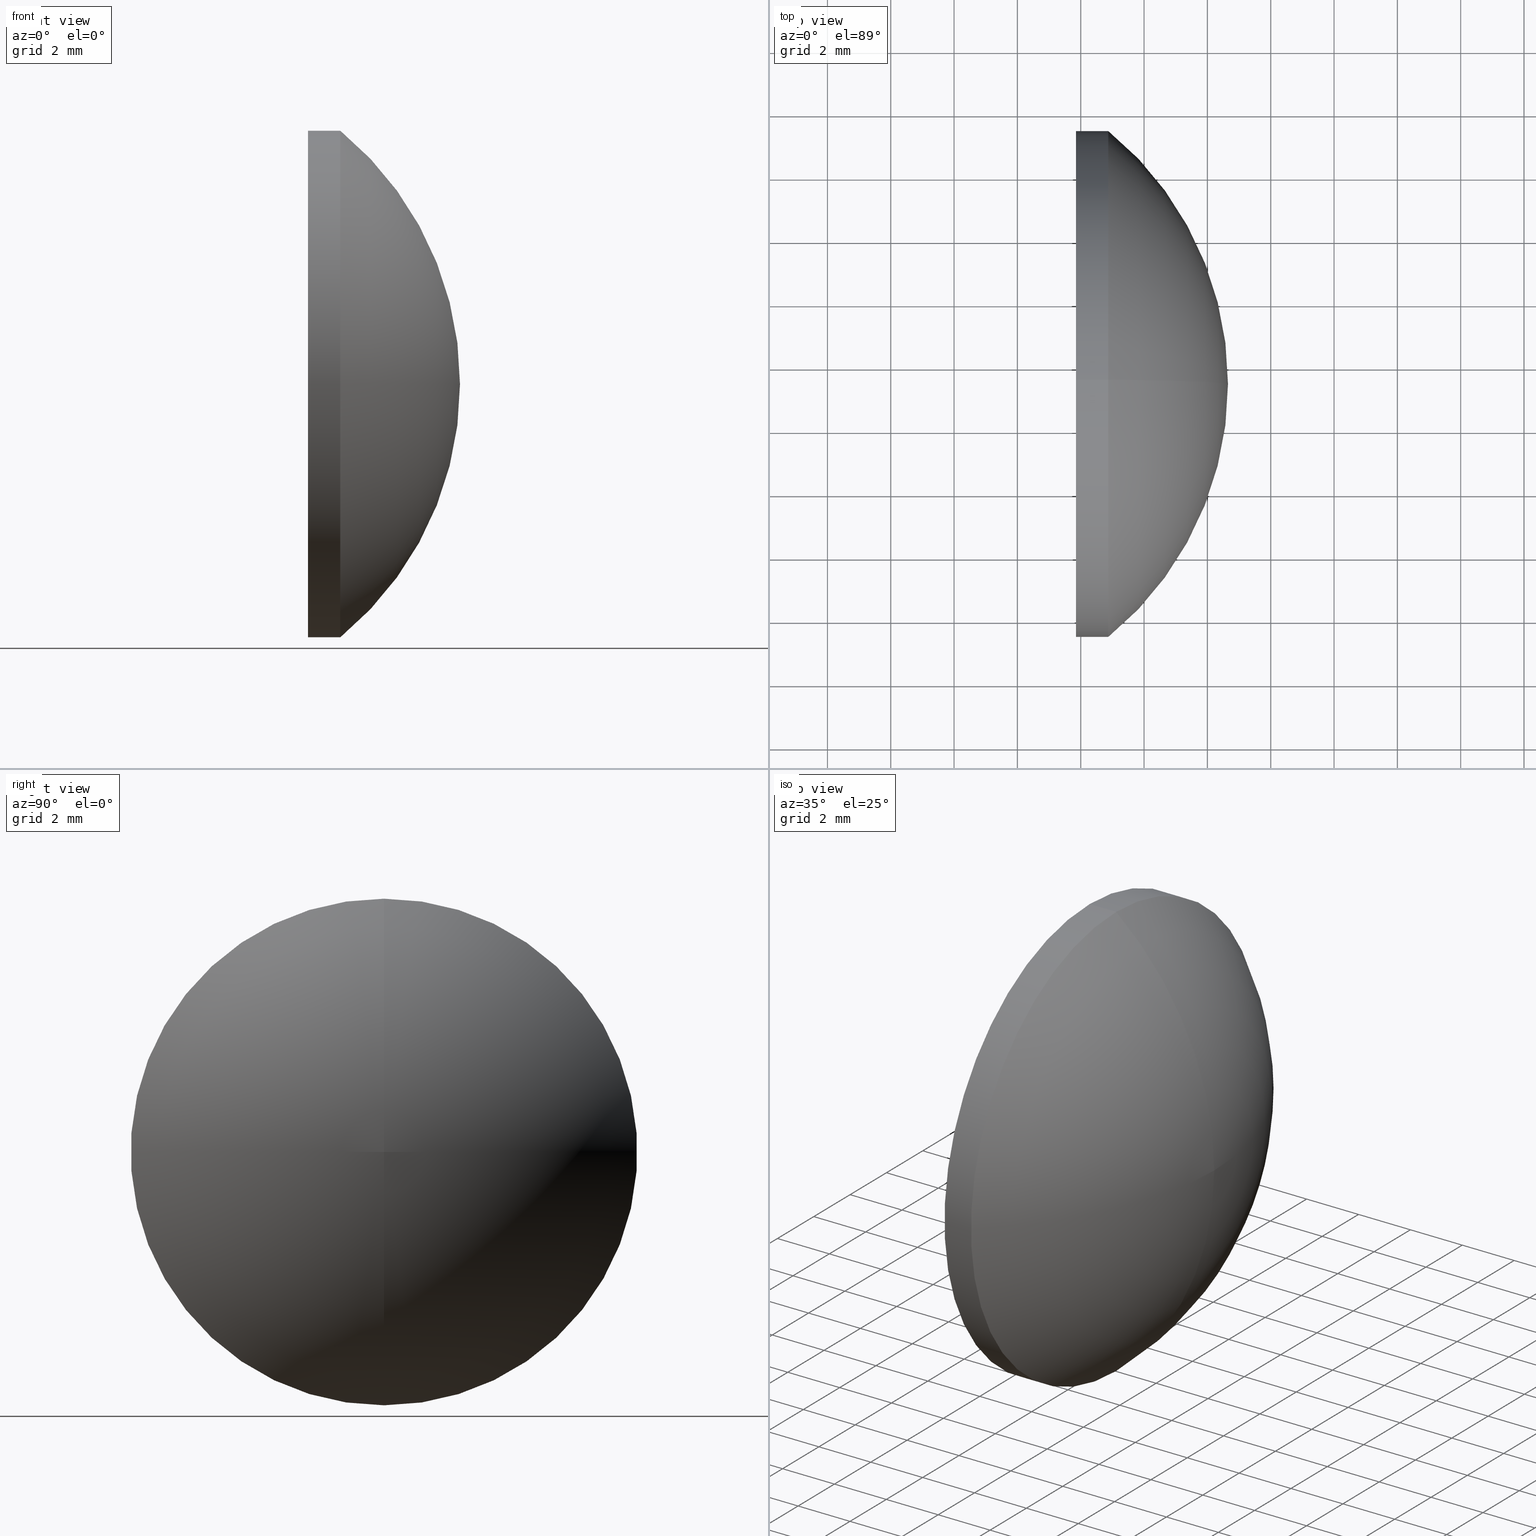
[diagram: canonical four-view strip — front | top / right | iso, engineering-drawing reading convention]
A machine part, canonical four-view strip (front | top / right | iso — engineering-drawing reading convention). The complete STEP part file that produces these views, byte-faithful:
ISO-10303-21;
HEADER;
FILE_DESCRIPTION (( 'STEP AP214' ),
    '1' );
FILE_NAME ('100283.STEP',
    '2019-05-29T08:31:47',
    ( '' ),
    ( '' ),
    'SwSTEP 2.0',
    'SolidWorks 2016',
    '' );
FILE_SCHEMA (( 'AUTOMOTIVE_DESIGN' ));
ENDSEC;

DATA;
#1 = ADVANCED_FACE ( 'NONE', ( #79 ), #45, .T. ) ;
#2 = AXIS2_PLACEMENT_3D ( 'NONE', #141, #143, #157 ) ;
#3 = ADVANCED_FACE ( 'NONE', ( #5 ), #85, .F. ) ;
#4 = DIRECTION ( 'NONE',  ( -0.0000000000000000000, 1.000000000000000000, 1.224646799147353200E-016 ) ) ;
#5 = FACE_OUTER_BOUND ( 'NONE', #80, .T. ) ;
#6 = CARTESIAN_POINT ( 'NONE',  ( 444.3056959863679900, 135.4163009679578000, 0.005081351781899279300 ) ) ;
#7 = ORIENTED_EDGE ( 'NONE', *, *, #87, .T. ) ;
#8 = FILL_AREA_STYLE_COLOUR ( '', #101 ) ;
#9 = CARTESIAN_POINT ( 'NONE',  ( 449.8505502683110500, 135.4163009679578000, 0.0000000000000000000 ) ) ;
#10 = VERTEX_POINT ( 'NONE', #75 ) ;
#11 = AXIS2_PLACEMENT_3D ( 'NONE', #70, #33, #102 ) ;
#12 = PRODUCT ( '100283', '100283', '', ( #61 ) ) ;
#13 = ORIENTED_EDGE ( 'NONE', *, *, #51, .T. ) ;
#14 = APPLICATION_PROTOCOL_DEFINITION ( 'draft international standard', 'automotive_design', 1998, #46 ) ;
#15 = ADVANCED_FACE ( 'NONE', ( #134 ), #22, .T. ) ;
#16 = DIRECTION ( 'NONE',  ( 0.0000000000000000000, 0.0000000000000000000, 1.000000000000000000 ) ) ;
#17 = AXIS2_PLACEMENT_3D ( 'NONE', #91, #83, #30 ) ;
#18 = CARTESIAN_POINT ( 'NONE',  ( 447.9277335634653200, 135.4163009679578000, 8.000000000000007100 ) ) ;
#19 =( NAMED_UNIT ( * ) PLANE_ANGLE_UNIT ( ) SI_UNIT ( $, .RADIAN. ) );
#20 = DIRECTION ( 'NONE',  ( -1.000000000000000000, -0.0000000000000000000, -0.0000000000000000000 ) ) ;
#21 = CARTESIAN_POINT ( 'NONE',  ( 444.3056959863679900, 135.4163009679578000, 0.0000000000000000000 ) ) ;
#22 = TOROIDAL_SURFACE ( 'NONE', #117, 0.005081351781899279300, 10.34485552991298700 ) ;
#23 = COLOUR_RGB ( '',1.000000000000000000, 1.000000000000000000, 1.000000000000000000 ) ;
#24 = AXIS2_PLACEMENT_3D ( 'NONE', #149, #4, #34 ) ;
#25 = UNCERTAINTY_MEASURE_WITH_UNIT (LENGTH_MEASURE( 1.000000000000000100E-005 ), #146, 'distance_accuracy_value', 'NONE');
#26 = ORIENTED_EDGE ( 'NONE', *, *, #159, .T. ) ;
#27 = PRODUCT_DEFINITION ( 'δ֪', '', #155, #112 ) ;
#28 = VECTOR ( 'NONE', #106, 1000.000000000000000 ) ;
#29 = ORIENTED_EDGE ( 'NONE', *, *, #56, .T. ) ;
#30 = DIRECTION ( 'NONE',  ( 1.000000000000000000, 0.0000000000000000000, 0.0000000000000000000 ) ) ;
#31 =( NAMED_UNIT ( * ) SI_UNIT ( $, .STERADIAN. ) SOLID_ANGLE_UNIT ( ) );
#32 =( GEOMETRIC_REPRESENTATION_CONTEXT ( 3 ) GLOBAL_UNCERTAINTY_ASSIGNED_CONTEXT ( ( #162 ) ) GLOBAL_UNIT_ASSIGNED_CONTEXT ( ( #148, #77, #130 ) ) REPRESENTATION_CONTEXT ( 'NONE', 'WORKASPACE' ) );
#33 = DIRECTION ( 'NONE',  ( -1.000000000000000000, -0.0000000000000000000, -0.0000000000000000000 ) ) ;
#34 = DIRECTION ( 'NONE',  ( 0.0000000000000000000, 0.0000000000000000000, 1.000000000000000000 ) ) ;
#35 = PRODUCT_RELATED_PRODUCT_CATEGORY ( 'part', '', ( #12 ) ) ;
#36 = FACE_OUTER_BOUND ( 'NONE', #88, .T. ) ;
#37 = FACE_OUTER_BOUND ( 'NONE', #131, .T. ) ;
#38 = DIRECTION ( 'NONE',  ( 0.0000000000000000000, 0.0000000000000000000, 1.000000000000000000 ) ) ;
#39 = SURFACE_SIDE_STYLE ('',( #140 ) ) ;
#40 = ORIENTED_EDGE ( 'NONE', *, *, #51, .F. ) ;
#41 = CARTESIAN_POINT ( 'NONE',  ( 444.3056959863679900, 135.4163009679578000, 0.0000000000000000000 ) ) ;
#42 =( GEOMETRIC_REPRESENTATION_CONTEXT ( 3 ) GLOBAL_UNCERTAINTY_ASSIGNED_CONTEXT ( ( #25 ) ) GLOBAL_UNIT_ASSIGNED_CONTEXT ( ( #146, #158, #31 ) ) REPRESENTATION_CONTEXT ( 'NONE', 'WORKASPACE' ) );
#43 = PRODUCT_DEFINITION_SHAPE ( 'NONE', 'NONE',  #27 ) ;
#44 = EDGE_CURVE ( 'NONE', #10, #127, #72, .T. ) ;
#45 = CYLINDRICAL_SURFACE ( 'NONE', #153, 8.000000000000007100 ) ;
#46 = APPLICATION_CONTEXT ( 'automotive_design' ) ;
#47 = DIRECTION ( 'NONE',  ( -1.000000000000000000, -0.0000000000000000000, -0.0000000000000000000 ) ) ;
#48 = ADVANCED_FACE ( 'NONE', ( #36 ), #138, .T. ) ;
#49 = TOROIDAL_SURFACE ( 'NONE', #50, 0.005081351781899279300, 10.34485552991298700 ) ;
#50 = AXIS2_PLACEMENT_3D ( 'NONE', #21, #53, #111 ) ;
#51 = EDGE_CURVE ( 'NONE', #10, #59, #113, .T. ) ;
#52 = DIRECTION ( 'NONE',  ( -1.000000000000000000, -0.0000000000000000000, -0.0000000000000000000 ) ) ;
#53 = DIRECTION ( 'NONE',  ( -1.000000000000000000, -0.0000000000000000000, -0.0000000000000000000 ) ) ;
#54 = AXIS2_PLACEMENT_3D ( 'NONE', #84, #108, #142 ) ;
#55 = ORIENTED_EDGE ( 'NONE', *, *, #159, .F. ) ;
#56 = EDGE_CURVE ( 'NONE', #59, #10, #58, .T. ) ;
#57 = EDGE_CURVE ( 'NONE', #135, #127, #65, .T. ) ;
#58 = CIRCLE ( 'NONE', #11, 8.000000000000007100 ) ;
#59 = VERTEX_POINT ( 'NONE', #62 ) ;
#60 = STYLED_ITEM ( 'NONE', ( #107 ), #99 ) ;
#61 = PRODUCT_CONTEXT ( 'NONE', #104, 'mechanical' ) ;
#62 = CARTESIAN_POINT ( 'NONE',  ( 450.8705502683110400, 135.4163009679578000, 8.000000000000003600 ) ) ;
#63 = EDGE_LOOP ( 'NONE', ( #29, #109, #86, #67 ) ) ;
#64 = AXIS2_PLACEMENT_3D ( 'NONE', #9, #110, #165 ) ;
#65 = CIRCLE ( 'NONE', #105, 8.000000000000007100 ) ;
#66 = PRESENTATION_LAYER_ASSIGNMENT (  '', '', ( #60 ) ) ;
#67 = ORIENTED_EDGE ( 'NONE', *, *, #87, .F. ) ;
#68 = EDGE_LOOP ( 'NONE', ( #125, #100, #40 ) ) ;
#69 = SURFACE_STYLE_USAGE ( .BOTH. , #129 ) ;
#70 = CARTESIAN_POINT ( 'NONE',  ( 450.8705502683110400, 135.4163009679578000, 0.0000000000000000000 ) ) ;
#71 = PRESENTATION_STYLE_ASSIGNMENT (( #69 ) ) ;
#72 = LINE ( 'NONE', #120, #81 ) ;
#73 = SURFACE_STYLE_USAGE ( .BOTH. , #39 ) ;
#74 = DIRECTION ( 'NONE',  ( -1.000000000000000000, -0.0000000000000000000, -0.0000000000000000000 ) ) ;
#75 = CARTESIAN_POINT ( 'NONE',  ( 450.8705502683110400, 135.4163009679578000, -8.000000000000003600 ) ) ;
#76 = CARTESIAN_POINT ( 'NONE',  ( 449.8505502683110500, 135.4163009679578000, 8.000000000000007100 ) ) ;
#77 =( NAMED_UNIT ( * ) PLANE_ANGLE_UNIT ( ) SI_UNIT ( $, .RADIAN. ) );
#78 = PRESENTATION_LAYER_ASSIGNMENT (  '', '', ( #154 ) ) ;
#79 = FACE_OUTER_BOUND ( 'NONE', #63, .T. ) ;
#80 = EDGE_LOOP ( 'NONE', ( #89, #26 ) ) ;
#81 = VECTOR ( 'NONE', #47, 1000.000000000000000 ) ;
#82 = MECHANICAL_DESIGN_GEOMETRIC_PRESENTATION_REPRESENTATION (  '', ( #60 ), #133 ) ;
#83 = DIRECTION ( 'NONE',  ( 0.0000000000000000000, 0.0000000000000000000, 1.000000000000000000 ) ) ;
#84 = CARTESIAN_POINT ( 'NONE',  ( 449.8505502683110500, 135.4163009679578000, 0.0000000000000000000 ) ) ;
#85 = PLANE ( 'NONE',  #64 ) ;
#86 = ORIENTED_EDGE ( 'NONE', *, *, #57, .F. ) ;
#87 = EDGE_CURVE ( 'NONE', #59, #135, #90, .T. ) ;
#88 = EDGE_LOOP ( 'NONE', ( #151, #13, #7, #55 ) ) ;
#89 = ORIENTED_EDGE ( 'NONE', *, *, #57, .T. ) ;
#90 = LINE ( 'NONE', #18, #28 ) ;
#91 = CARTESIAN_POINT ( 'NONE',  ( 0.0000000000000000000, 0.0000000000000000000, 0.0000000000000000000 ) ) ;
#92 = DIRECTION ( 'NONE',  ( 0.0000000000000000000, 0.0000000000000000000, 1.000000000000000000 ) ) ;
#93 = ADVANCED_FACE ( 'NONE', ( #37 ), #49, .T. ) ;
#94 = DIRECTION ( 'NONE',  ( -1.000000000000000000, -0.0000000000000000000, -0.0000000000000000000 ) ) ;
#95 = DIRECTION ( 'NONE',  ( 0.0000000000000000000, 0.0000000000000000000, -1.000000000000000000 ) ) ;
#96 =( LENGTH_UNIT ( ) NAMED_UNIT ( * ) SI_UNIT ( .MILLI., .METRE. ) );
#97 = ORIENTED_EDGE ( 'NONE', *, *, #56, .F. ) ;
#98 = VERTEX_POINT ( 'NONE', #164 ) ;
#99 = MANIFOLD_SOLID_BREP ( '��ת1', #156 ) ;
#100 = ORIENTED_EDGE ( 'NONE', *, *, #145, .T. ) ;
#101 = COLOUR_RGB ( '',1.000000000000000000, 1.000000000000000000, 1.000000000000000000 ) ;
#102 = DIRECTION ( 'NONE',  ( 0.0000000000000000000, 0.0000000000000000000, 1.000000000000000000 ) ) ;
#103 = FILL_AREA_STYLE ('',( #119 ) ) ;
#104 = APPLICATION_CONTEXT ( 'automotive_design' ) ;
#105 = AXIS2_PLACEMENT_3D ( 'NONE', #150, #52, #160 ) ;
#106 = DIRECTION ( 'NONE',  ( -1.000000000000000000, -0.0000000000000000000, -0.0000000000000000000 ) ) ;
#107 = PRESENTATION_STYLE_ASSIGNMENT (( #73 ) ) ;
#108 = DIRECTION ( 'NONE',  ( -1.000000000000000000, -0.0000000000000000000, -0.0000000000000000000 ) ) ;
#109 = ORIENTED_EDGE ( 'NONE', *, *, #44, .T. ) ;
#110 = DIRECTION ( 'NONE',  ( 1.000000000000000000, 0.0000000000000000000, 0.0000000000000000000 ) ) ;
#111 = DIRECTION ( 'NONE',  ( 0.0000000000000000000, 0.0000000000000000000, 1.000000000000000000 ) ) ;
#112 = PRODUCT_DEFINITION_CONTEXT ( 'detailed design', #46, 'design' ) ;
#113 = CIRCLE ( 'NONE', #2, 8.000000000000007100 ) ;
#114 = ADVANCED_BREP_SHAPE_REPRESENTATION ( '100283', ( #99, #17 ), #32 ) ;
#115 = ORIENTED_EDGE ( 'NONE', *, *, #137, .T. ) ;
#116 = SURFACE_STYLE_FILL_AREA ( #103 ) ;
#117 = AXIS2_PLACEMENT_3D ( 'NONE', #41, #74, #92 ) ;
#118 = CIRCLE ( 'NONE', #24, 10.34485552991298700 ) ;
#119 = FILL_AREA_STYLE_COLOUR ( '', #23 ) ;
#120 = CARTESIAN_POINT ( 'NONE',  ( 447.9277335634653200, 135.4163009679578000, -8.000000000000007100 ) ) ;
#121 = APPLICATION_PROTOCOL_DEFINITION ( 'draft international standard', 'automotive_design', 1998, #104 ) ;
#122 = DIRECTION ( 'NONE',  ( 0.0000000000000000000, -1.000000000000000000, 0.0000000000000000000 ) ) ;
#123 =( NAMED_UNIT ( * ) SI_UNIT ( $, .STERADIAN. ) SOLID_ANGLE_UNIT ( ) );
#124 = AXIS2_PLACEMENT_3D ( 'NONE', #6, #122, #95 ) ;
#125 = ORIENTED_EDGE ( 'NONE', *, *, #137, .F. ) ;
#126 = SHAPE_DEFINITION_REPRESENTATION ( #43, #114 ) ;
#127 = VERTEX_POINT ( 'NONE', #132 ) ;
#128 = CIRCLE ( 'NONE', #54, 8.000000000000007100 ) ;
#129 = SURFACE_SIDE_STYLE ('',( #116 ) ) ;
#130 =( NAMED_UNIT ( * ) SI_UNIT ( $, .STERADIAN. ) SOLID_ANGLE_UNIT ( ) );
#131 = EDGE_LOOP ( 'NONE', ( #147, #115, #97 ) ) ;
#132 = CARTESIAN_POINT ( 'NONE',  ( 449.8505502683110500, 135.4163009679578000, -8.000000000000007100 ) ) ;
#133 =( GEOMETRIC_REPRESENTATION_CONTEXT ( 3 ) GLOBAL_UNCERTAINTY_ASSIGNED_CONTEXT ( ( #139 ) ) GLOBAL_UNIT_ASSIGNED_CONTEXT ( ( #96, #19, #123 ) ) REPRESENTATION_CONTEXT ( 'NONE', 'WORKASPACE' ) );
#134 = FACE_OUTER_BOUND ( 'NONE', #68, .T. ) ;
#135 = VERTEX_POINT ( 'NONE', #76 ) ;
#136 = MECHANICAL_DESIGN_GEOMETRIC_PRESENTATION_REPRESENTATION (  '', ( #154 ), #42 ) ;
#137 = EDGE_CURVE ( 'NONE', #98, #10, #118, .T. ) ;
#138 = CYLINDRICAL_SURFACE ( 'NONE', #166, 8.000000000000007100 ) ;
#139 = UNCERTAINTY_MEASURE_WITH_UNIT (LENGTH_MEASURE( 1.000000000000000100E-005 ), #96, 'distance_accuracy_value', 'NONE');
#140 = SURFACE_STYLE_FILL_AREA ( #161 ) ;
#141 = CARTESIAN_POINT ( 'NONE',  ( 450.8705502683110400, 135.4163009679578000, 0.0000000000000000000 ) ) ;
#142 = DIRECTION ( 'NONE',  ( 0.0000000000000000000, 0.0000000000000000000, 1.000000000000000000 ) ) ;
#143 = DIRECTION ( 'NONE',  ( -1.000000000000000000, -0.0000000000000000000, -0.0000000000000000000 ) ) ;
#144 = CARTESIAN_POINT ( 'NONE',  ( 447.9277335634653200, 135.4163009679578000, 0.0000000000000000000 ) ) ;
#145 = EDGE_CURVE ( 'NONE', #98, #59, #152, .T. ) ;
#146 =( LENGTH_UNIT ( ) NAMED_UNIT ( * ) SI_UNIT ( .MILLI., .METRE. ) );
#147 = ORIENTED_EDGE ( 'NONE', *, *, #145, .F. ) ;
#148 =( LENGTH_UNIT ( ) NAMED_UNIT ( * ) SI_UNIT ( .MILLI., .METRE. ) );
#149 = CARTESIAN_POINT ( 'NONE',  ( 444.3056959863679900, 135.4163009679578000, -0.005081351781899279300 ) ) ;
#150 = CARTESIAN_POINT ( 'NONE',  ( 449.8505502683110500, 135.4163009679578000, 0.0000000000000000000 ) ) ;
#151 = ORIENTED_EDGE ( 'NONE', *, *, #44, .F. ) ;
#152 = CIRCLE ( 'NONE', #124, 10.34485552991298700 ) ;
#153 = AXIS2_PLACEMENT_3D ( 'NONE', #163, #20, #38 ) ;
#154 = STYLED_ITEM ( 'NONE', ( #71 ), #114 ) ;
#155 = PRODUCT_DEFINITION_FORMATION_WITH_SPECIFIED_SOURCE ( '�κ�', '', #12, .NOT_KNOWN. ) ;
#156 = CLOSED_SHELL ( 'NONE', ( #1, #93, #15, #48, #3 ) ) ;
#157 = DIRECTION ( 'NONE',  ( 0.0000000000000000000, 0.0000000000000000000, 1.000000000000000000 ) ) ;
#158 =( NAMED_UNIT ( * ) PLANE_ANGLE_UNIT ( ) SI_UNIT ( $, .RADIAN. ) );
#159 = EDGE_CURVE ( 'NONE', #127, #135, #128, .T. ) ;
#160 = DIRECTION ( 'NONE',  ( 0.0000000000000000000, 0.0000000000000000000, 1.000000000000000000 ) ) ;
#161 = FILL_AREA_STYLE ('',( #8 ) ) ;
#162 = UNCERTAINTY_MEASURE_WITH_UNIT (LENGTH_MEASURE( 1.000000000000000100E-005 ), #148, 'distance_accuracy_value', 'NONE');
#163 = CARTESIAN_POINT ( 'NONE',  ( 447.9277335634653200, 135.4163009679578000, 0.0000000000000000000 ) ) ;
#164 = CARTESIAN_POINT ( 'NONE',  ( 454.6505502683110100, 135.4163009679578000, 0.0000000000000000000 ) ) ;
#165 = DIRECTION ( 'NONE',  ( 0.0000000000000000000, 0.0000000000000000000, -1.000000000000000000 ) ) ;
#166 = AXIS2_PLACEMENT_3D ( 'NONE', #144, #94, #16 ) ;
ENDSEC;
END-ISO-10303-21;
